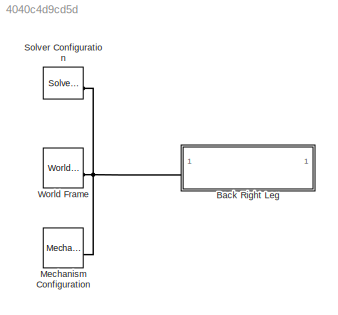
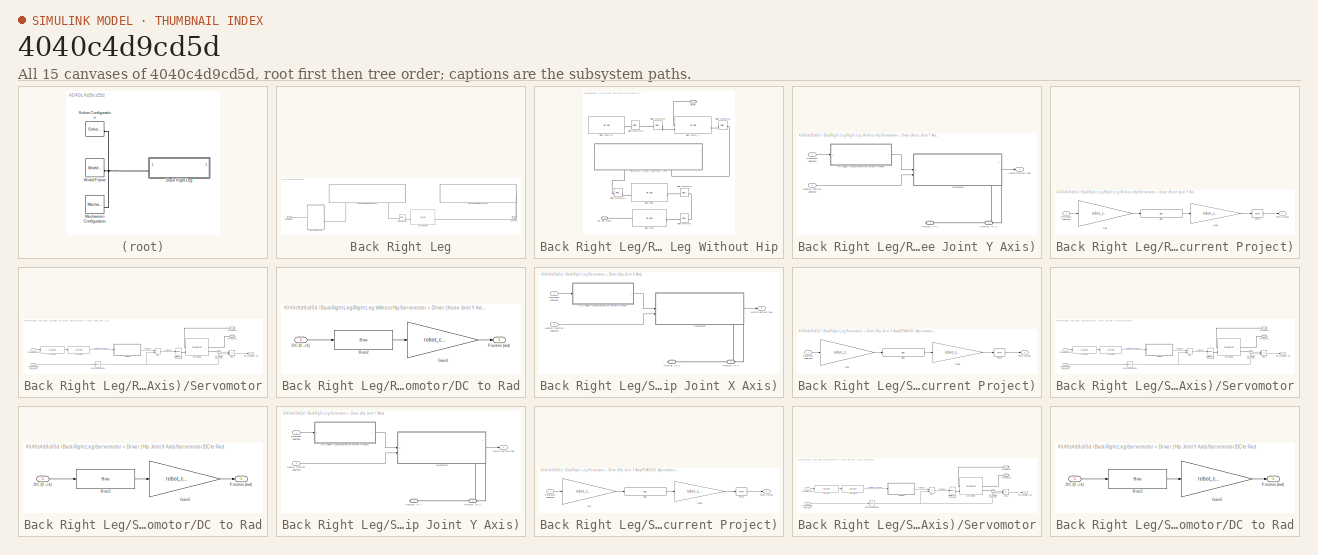
[diagram: thumbnail index - all 15 canvases of the model, root first then tree order]
MODEL slx_4040c4d9cd5d
KIND model
CONFIG AbsTol = 1e-3
CONFIG EnableMultiTasking = on
CONFIG FixedStep = auto
CONFIG MaxStep = auto
CONFIG MinStep = auto
CONFIG RelTol = 1e-3
CONFIG SampleTimeConstraint = Unconstrained
CONFIG SolverName = VariableStepAuto
CONFIG StartTime = 0.0
CONFIG StopTime = 10.0
BLOCK [SubSystem] Back Right Leg
BLOCK [Reference] Back Right Leg/Back Right Hip  REF=sm_lib/Body Elements/File Solid
  SourceBlock = sm_lib/Body Elements/File Solid
  SourceType = File Solid
BLOCK [PMIOPort] Back Right Leg/Body joint
  Port = 2
  Side = Right
BLOCK [SubSystem] Back Right Leg/Right Leg Without Hip
BLOCK [PMIOPort] Back Right Leg/Right Leg Without Hip/Hip_joint
  Port = 2
  Side = Right
BLOCK [Reference] Back Right Leg/Right Leg Without Hip/Right Femur A  REF=sm_lib/Body Elements/File Solid
  SourceBlock = sm_lib/Body Elements/File Solid
  SourceType = File Solid
BLOCK [Reference] Back Right Leg/Right Leg Without Hip/Right Femur B  REF=sm_lib/Body Elements/File Solid
  SourceBlock = sm_lib/Body Elements/File Solid
  SourceType = File Solid
BLOCK [Reference] Back Right Leg/Right Leg Without Hip/Right Foot  REF=sm_lib/Body Elements/File Solid
  SourceBlock = sm_lib/Body Elements/File Solid
  SourceType = File Solid
BLOCK [Reference] Back Right Leg/Right Leg Without Hip/Right Tibia  REF=sm_lib/Body Elements/File Solid
  SourceBlock = sm_lib/Body Elements/File Solid
  SourceType = File Solid
BLOCK [Reference] Back Right Leg/Right Leg Without Hip/Rigid Transform  REF=sm_lib/Frames and
Transforms/Rigid
Transform
  SourceBlock = sm_lib/Frames and\nTransforms/Rigid\nTransform
  SourceType = Rigid\nTransform
BLOCK [Reference] Back Right Leg/Right Leg Without Hip/Rigid Transform1  REF=sm_lib/Frames and
Transforms/Rigid
Transform
  SourceBlock = sm_lib/Frames and\nTransforms/Rigid\nTransform
  SourceType = Rigid\nTransform
BLOCK [Reference] Back Right Leg/Right Leg Without Hip/Rigid Transform2  REF=sm_lib/Frames and
Transforms/Rigid
Transform
  SourceBlock = sm_lib/Frames and\nTransforms/Rigid\nTransform
  SourceType = Rigid\nTransform
BLOCK [Reference] Back Right Leg/Right Leg Without Hip/Rigid Transform4  REF=sm_lib/Frames and
Transforms/Rigid
Transform
  SourceBlock = sm_lib/Frames and\nTransforms/Rigid\nTransform
  SourceType = Rigid\nTransform
BLOCK [Reference] Back Right Leg/Right Leg Without Hip/Rigid Transform5  REF=sm_lib/Frames and
Transforms/Rigid
Transform
  SourceBlock = sm_lib/Frames and\nTransforms/Rigid\nTransform
  SourceType = Rigid\nTransform
BLOCK [Reference] Back Right Leg/Right Leg Without Hip/Rigid Transform6  REF=sm_lib/Frames and
Transforms/Rigid
Transform
  NameLocation = right
  SourceBlock = sm_lib/Frames and\nTransforms/Rigid\nTransform
  SourceType = Rigid\nTransform
BLOCK [SubSystem] Back Right Leg/Right Leg Without Hip/Servomotor + Driver (Knee Joint Y Axis)
  PortSchema = {"entries":[{"content":{"sides":[{"content":{"connectorIds":["In1","In2"]},"type":"ConnectorPlacement.EquallySpacedRectSide","uuid":"34aed934-2639-4a00-aaee-cf3027466446"},{"content":{"connectorIds":["Out1"],"side":"RIGHT"},"type":"ConnectorPlacement.EquallySpacedRectSide","uuid":"6801890d-3466-4e37-90e8-6d1471e5b2c4"},{"content":{"side":"TOP"},"type":"ConnectorPlacement.EquallySpacedRectSide","uu...<+389ch>  <repeated x3 — deduplicated; at blocks: Servomotor + Driver (Knee Joint Y Axis), Servomotor + Driver (Hip Joint X Axis), Servomotor + Driver (Hip Joint Y Axis)>
BLOCK [Inport] Back Right Leg/Right Leg Without Hip/Servomotor + Driver (Knee Joint Y Axis)/Neutral Position (degrees)
  Port = 2
BLOCK [SubSystem] Back Right Leg/Right Leg Without Hip/Servomotor + Driver (Knee Joint Y Axis)/PCA9685 (Aproximation for current Project)
BLOCK [Bias] Back Right Leg/Right Leg Without Hip/Servomotor + Driver (Knee Joint Y Axis)/PCA9685 (Aproximation for current Project)/Bias
  Bias = robot_conversions.steps_offset
  SaturateOnIntegerOverflow = off
BLOCK [Gain] Back Right Leg/Right Leg Without Hip/Servomotor + Driver (Knee Joint Y Axis)/PCA9685 (Aproximation for current Project)/Gain
  Gain = robot_conversions.steps_to_degrees
BLOCK [Gain] Back Right Leg/Right Leg Without Hip/Servomotor + Driver (Knee Joint Y Axis)/PCA9685 (Aproximation for current Project)/Gain1
  Gain = robot_conversions.degress_to_DC
BLOCK [Reference] Back Right Leg/Right Leg Without Hip/Servomotor + Driver (Knee Joint Y Axis)/PCA9685 (Aproximation for current Project)/PWM  REF=simulink/Discontinuities/PWM
  DisableCoverage = on
  SourceBlock = simulink/Discontinuities/PWM
  SourceType = PWM
BLOCK [Outport] Back Right Leg/Right Leg Without Hip/Servomotor + Driver (Knee Joint Y Axis)/PCA9685 (Aproximation for current Project)/PWM Output
  NameLocation = right
BLOCK [Inport] Back Right Leg/Right Leg Without Hip/Servomotor + Driver (Knee Joint Y Axis)/PCA9685 (Aproximation for current Project)/Reference (degrees)
  NameLocation = left
BLOCK [PMIOPort] Back Right Leg/Right Leg Without Hip/Servomotor + Driver (Knee Joint Y Axis)/Physical Art 1
  Side = Right
BLOCK [PMIOPort] Back Right Leg/Right Leg Without Hip/Servomotor + Driver (Knee Joint Y Axis)/Physical Art 2
  Port = 2
  Side = Right
BLOCK [Inport] Back Right Leg/Right Leg Without Hip/Servomotor + Driver (Knee Joint Y Axis)/Reference (degrees)
BLOCK [Outport] Back Right Leg/Right Leg Without Hip/Servomotor + Driver (Knee Joint Y Axis)/Servo Position (rad)
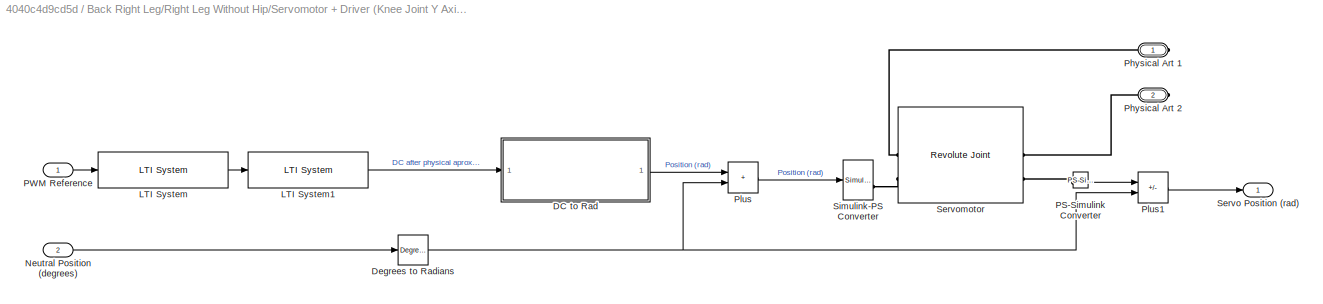
BLOCK [SubSystem] Back Right Leg/Right Leg Without Hip/Servomotor + Driver (Knee Joint Y Axis)/Servomotor
  PortSchema = {"entries":[{"content":{"sides":[{"content":{"connectorIds":["In1","In2"]},"type":"ConnectorPlacement.EquallySpacedRectSide","uuid":"eeff66d3-7cb0-4fe9-90b5-92935711e170"},{"content":{"connectorIds":["Out1"],"side":"RIGHT"},"type":"ConnectorPlacement.EquallySpacedRectSide","uuid":"4c1729b3-3224-4ed4-9eed-359312bd5e7e"},{"content":{"side":"TOP"},"type":"ConnectorPlacement.EquallySpacedRectSide","uu...<+389ch>  <repeated x3 — deduplicated; at blocks: Servomotor>
BLOCK [SubSystem] Back Right Leg/Right Leg Without Hip/Servomotor + Driver (Knee Joint Y Axis)/Servomotor/DC to Rad
BLOCK [Bias] Back Right Leg/Right Leg Without Hip/Servomotor + Driver (Knee Joint Y Axis)/Servomotor/DC to Rad/Bias2
  Bias = robot_conversions.DC_offset
  SaturateOnIntegerOverflow = off
BLOCK [Inport] Back Right Leg/Right Leg Without Hip/Servomotor + Driver (Knee Joint Y Axis)/Servomotor/DC to Rad/DC (0 -->1)
BLOCK [Gain] Back Right Leg/Right Leg Without Hip/Servomotor + Driver (Knee Joint Y Axis)/Servomotor/DC to Rad/Gain2
  Gain = robot_conversions.DC_to_rad
BLOCK [Outport] Back Right Leg/Right Leg Without Hip/Servomotor + Driver (Knee Joint Y Axis)/Servomotor/DC to Rad/Position (rad)
BLOCK [Reference] Back Right Leg/Right Leg Without Hip/Servomotor + Driver (Knee Joint Y Axis)/Servomotor/Degrees to Radians  REF=simulink_extras/Transformations/Degrees to
Radians
  SourceBlock = simulink_extras/Transformations/Degrees to\nRadians
  SourceType = DegreesToRadians
BLOCK [Reference] Back Right Leg/Right Leg Without Hip/Servomotor + Driver (Knee Joint Y Axis)/Servomotor/LTI System  REF=cstblocks/LTI System
  SourceBlock = cstblocks/LTI System
  SourceType = LTI Block
BLOCK [Reference] Back Right Leg/Right Leg Without Hip/Servomotor + Driver (Knee Joint Y Axis)/Servomotor/LTI System1  REF=cstblocks/LTI System
  SourceBlock = cstblocks/LTI System
  SourceType = LTI Block
BLOCK [Inport] Back Right Leg/Right Leg Without Hip/Servomotor + Driver (Knee Joint Y Axis)/Servomotor/Neutral Position (degrees)
  NameLocation = left
  Port = 2
BLOCK [Reference] Back Right Leg/Right Leg Without Hip/Servomotor + Driver (Knee Joint Y Axis)/Servomotor/PS-Simulink Converter  REF=nesl_utility/PS-Simulink
Converter
  SourceBlock = nesl_utility/PS-Simulink\nConverter
  SourceType = PS-Simulink\nConverter
BLOCK [Inport] Back Right Leg/Right Leg Without Hip/Servomotor + Driver (Knee Joint Y Axis)/Servomotor/PWM Reference
  NameLocation = left
BLOCK [PMIOPort] Back Right Leg/Right Leg Without Hip/Servomotor + Driver (Knee Joint Y Axis)/Servomotor/Physical Art 1
  Side = Right
BLOCK [PMIOPort] Back Right Leg/Right Leg Without Hip/Servomotor + Driver (Knee Joint Y Axis)/Servomotor/Physical Art 2
  Port = 2
  Side = Right
BLOCK [Sum] Back Right Leg/Right Leg Without Hip/Servomotor + Driver (Knee Joint Y Axis)/Servomotor/Plus
  IconShape = rectangular
BLOCK [Sum] Back Right Leg/Right Leg Without Hip/Servomotor + Driver (Knee Joint Y Axis)/Servomotor/Plus1
  IconShape = rectangular
  Inputs = +-
BLOCK [Outport] Back Right Leg/Right Leg Without Hip/Servomotor + Driver (Knee Joint Y Axis)/Servomotor/Servo Position (rad)
  NameLocation = right
BLOCK [Reference] Back Right Leg/Right Leg Without Hip/Servomotor + Driver (Knee Joint Y Axis)/Servomotor/Servomotor  REF=sm_lib/Joints/Revolute Joint
  SourceBlock = sm_lib/Joints/Revolute Joint
  SourceType = Revolute Joint
BLOCK [Reference] Back Right Leg/Right Leg Without Hip/Servomotor + Driver (Knee Joint Y Axis)/Servomotor/Simulink-PS Converter  REF=nesl_utility/Simulink-PS
Converter
  SourceBlock = nesl_utility/Simulink-PS\nConverter
  SourceType = Simulink-PS\nConverter
BLOCK [PMIOPort] Back Right Leg/Right Leg Without Hip/Sist Ref Global
  Side = Left
BLOCK [Reference] Back Right Leg/Rigid Transform  REF=sm_lib/Frames and
Transforms/Rigid
Transform
  SourceBlock = sm_lib/Frames and\nTransforms/Rigid\nTransform
  SourceType = Rigid\nTransform
BLOCK [SubSystem] Back Right Leg/Servomotor + Driver (Hip Joint X Axis)
BLOCK [Inport] Back Right Leg/Servomotor + Driver (Hip Joint X Axis)/Neutral Position (degrees)
  Port = 2
BLOCK [SubSystem] Back Right Leg/Servomotor + Driver (Hip Joint X Axis)/PCA9685 (Aproximation for current Project)
BLOCK [Bias] Back Right Leg/Servomotor + Driver (Hip Joint X Axis)/PCA9685 (Aproximation for current Project)/Bias
  Bias = robot_conversions.steps_offset
  SaturateOnIntegerOverflow = off
BLOCK [Gain] Back Right Leg/Servomotor + Driver (Hip Joint X Axis)/PCA9685 (Aproximation for current Project)/Gain
  Gain = robot_conversions.steps_to_degrees
BLOCK [Gain] Back Right Leg/Servomotor + Driver (Hip Joint X Axis)/PCA9685 (Aproximation for current Project)/Gain1
  Gain = robot_conversions.degress_to_DC
BLOCK [Reference] Back Right Leg/Servomotor + Driver (Hip Joint X Axis)/PCA9685 (Aproximation for current Project)/PWM  REF=simulink/Discontinuities/PWM
  DisableCoverage = on
  SourceBlock = simulink/Discontinuities/PWM
  SourceType = PWM
BLOCK [Outport] Back Right Leg/Servomotor + Driver (Hip Joint X Axis)/PCA9685 (Aproximation for current Project)/PWM Output
  NameLocation = right
BLOCK [Inport] Back Right Leg/Servomotor + Driver (Hip Joint X Axis)/PCA9685 (Aproximation for current Project)/Reference (degrees)
  NameLocation = left
BLOCK [PMIOPort] Back Right Leg/Servomotor + Driver (Hip Joint X Axis)/Physical Art 1
  Side = Right
BLOCK [PMIOPort] Back Right Leg/Servomotor + Driver (Hip Joint X Axis)/Physical Art 2
  Port = 2
  Side = Right
BLOCK [Inport] Back Right Leg/Servomotor + Driver (Hip Joint X Axis)/Reference (degrees)
BLOCK [Outport] Back Right Leg/Servomotor + Driver (Hip Joint X Axis)/Servo Position (rad)
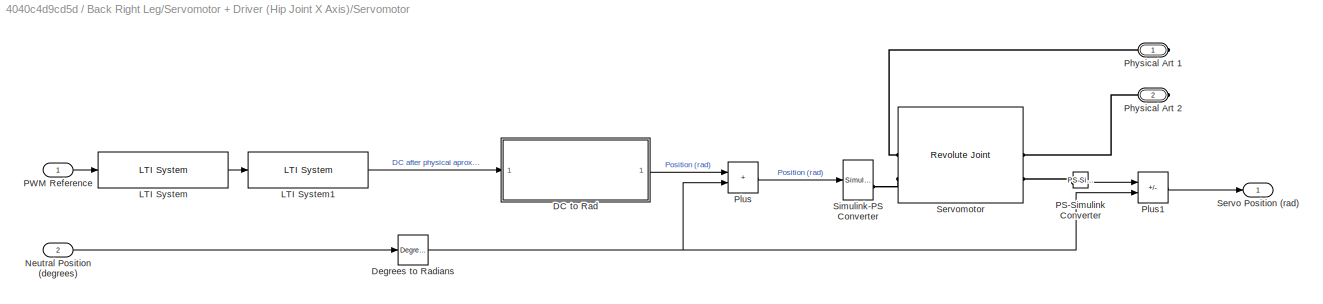
BLOCK [SubSystem] Back Right Leg/Servomotor + Driver (Hip Joint X Axis)/Servomotor
BLOCK [SubSystem] Back Right Leg/Servomotor + Driver (Hip Joint X Axis)/Servomotor/DC to Rad
BLOCK [Bias] Back Right Leg/Servomotor + Driver (Hip Joint X Axis)/Servomotor/DC to Rad/Bias2
  Bias = robot_conversions.DC_offset
  SaturateOnIntegerOverflow = off
BLOCK [Inport] Back Right Leg/Servomotor + Driver (Hip Joint X Axis)/Servomotor/DC to Rad/DC (0 -->1)
BLOCK [Gain] Back Right Leg/Servomotor + Driver (Hip Joint X Axis)/Servomotor/DC to Rad/Gain2
  Gain = robot_conversions.DC_to_rad
BLOCK [Outport] Back Right Leg/Servomotor + Driver (Hip Joint X Axis)/Servomotor/DC to Rad/Position (rad)
BLOCK [Reference] Back Right Leg/Servomotor + Driver (Hip Joint X Axis)/Servomotor/Degrees to Radians  REF=simulink_extras/Transformations/Degrees to
Radians
  SourceBlock = simulink_extras/Transformations/Degrees to\nRadians
  SourceType = DegreesToRadians
BLOCK [Reference] Back Right Leg/Servomotor + Driver (Hip Joint X Axis)/Servomotor/LTI System  REF=cstblocks/LTI System
  SourceBlock = cstblocks/LTI System
  SourceType = LTI Block
BLOCK [Reference] Back Right Leg/Servomotor + Driver (Hip Joint X Axis)/Servomotor/LTI System1  REF=cstblocks/LTI System
  SourceBlock = cstblocks/LTI System
  SourceType = LTI Block
BLOCK [Inport] Back Right Leg/Servomotor + Driver (Hip Joint X Axis)/Servomotor/Neutral Position (degrees)
  NameLocation = left
  Port = 2
BLOCK [Reference] Back Right Leg/Servomotor + Driver (Hip Joint X Axis)/Servomotor/PS-Simulink Converter  REF=nesl_utility/PS-Simulink
Converter
  SourceBlock = nesl_utility/PS-Simulink\nConverter
  SourceType = PS-Simulink\nConverter
BLOCK [Inport] Back Right Leg/Servomotor + Driver (Hip Joint X Axis)/Servomotor/PWM Reference
  NameLocation = left
BLOCK [PMIOPort] Back Right Leg/Servomotor + Driver (Hip Joint X Axis)/Servomotor/Physical Art 1
  Side = Right
BLOCK [PMIOPort] Back Right Leg/Servomotor + Driver (Hip Joint X Axis)/Servomotor/Physical Art 2
  Port = 2
  Side = Right
BLOCK [Sum] Back Right Leg/Servomotor + Driver (Hip Joint X Axis)/Servomotor/Plus
  IconShape = rectangular
BLOCK [Sum] Back Right Leg/Servomotor + Driver (Hip Joint X Axis)/Servomotor/Plus1
  IconShape = rectangular
  Inputs = +-
BLOCK [Outport] Back Right Leg/Servomotor + Driver (Hip Joint X Axis)/Servomotor/Servo Position (rad)
  NameLocation = right
BLOCK [Reference] Back Right Leg/Servomotor + Driver (Hip Joint X Axis)/Servomotor/Servomotor  REF=sm_lib/Joints/Revolute Joint
  SourceBlock = sm_lib/Joints/Revolute Joint
  SourceType = Revolute Joint
BLOCK [Reference] Back Right Leg/Servomotor + Driver (Hip Joint X Axis)/Servomotor/Simulink-PS Converter  REF=nesl_utility/Simulink-PS
Converter
  SourceBlock = nesl_utility/Simulink-PS\nConverter
  SourceType = Simulink-PS\nConverter
BLOCK [SubSystem] Back Right Leg/Servomotor + Driver (Hip Joint Y Axis)
BLOCK [Inport] Back Right Leg/Servomotor + Driver (Hip Joint Y Axis)/Neutral Position (degrees)
  Port = 2
BLOCK [SubSystem] Back Right Leg/Servomotor + Driver (Hip Joint Y Axis)/PCA9685 (Aproximation for current Project)
BLOCK [Bias] Back Right Leg/Servomotor + Driver (Hip Joint Y Axis)/PCA9685 (Aproximation for current Project)/Bias
  Bias = robot_conversions.steps_offset
  SaturateOnIntegerOverflow = off
BLOCK [Gain] Back Right Leg/Servomotor + Driver (Hip Joint Y Axis)/PCA9685 (Aproximation for current Project)/Gain
  Gain = robot_conversions.steps_to_degrees
BLOCK [Gain] Back Right Leg/Servomotor + Driver (Hip Joint Y Axis)/PCA9685 (Aproximation for current Project)/Gain1
  Gain = robot_conversions.degress_to_DC
BLOCK [Reference] Back Right Leg/Servomotor + Driver (Hip Joint Y Axis)/PCA9685 (Aproximation for current Project)/PWM  REF=simulink/Discontinuities/PWM
  DisableCoverage = on
  SourceBlock = simulink/Discontinuities/PWM
  SourceType = PWM
BLOCK [Outport] Back Right Leg/Servomotor + Driver (Hip Joint Y Axis)/PCA9685 (Aproximation for current Project)/PWM Output
  NameLocation = right
BLOCK [Inport] Back Right Leg/Servomotor + Driver (Hip Joint Y Axis)/PCA9685 (Aproximation for current Project)/Reference (degrees)
  NameLocation = left
BLOCK [PMIOPort] Back Right Leg/Servomotor + Driver (Hip Joint Y Axis)/Physical Art 1
  Side = Right
BLOCK [PMIOPort] Back Right Leg/Servomotor + Driver (Hip Joint Y Axis)/Physical Art 2
  Port = 2
  Side = Right
BLOCK [Inport] Back Right Leg/Servomotor + Driver (Hip Joint Y Axis)/Reference (degrees)
BLOCK [Outport] Back Right Leg/Servomotor + Driver (Hip Joint Y Axis)/Servo Position (rad)
BLOCK [SubSystem] Back Right Leg/Servomotor + Driver (Hip Joint Y Axis)/Servomotor
BLOCK [SubSystem] Back Right Leg/Servomotor + Driver (Hip Joint Y Axis)/Servomotor/DC to Rad
BLOCK [Bias] Back Right Leg/Servomotor + Driver (Hip Joint Y Axis)/Servomotor/DC to Rad/Bias2
  Bias = robot_conversions.DC_offset
  SaturateOnIntegerOverflow = off
BLOCK [Inport] Back Right Leg/Servomotor + Driver (Hip Joint Y Axis)/Servomotor/DC to Rad/DC (0 -->1)
BLOCK [Gain] Back Right Leg/Servomotor + Driver (Hip Joint Y Axis)/Servomotor/DC to Rad/Gain2
  Gain = robot_conversions.DC_to_rad
BLOCK [Outport] Back Right Leg/Servomotor + Driver (Hip Joint Y Axis)/Servomotor/DC to Rad/Position (rad)
BLOCK [Reference] Back Right Leg/Servomotor + Driver (Hip Joint Y Axis)/Servomotor/Degrees to Radians  REF=simulink_extras/Transformations/Degrees to
Radians
  SourceBlock = simulink_extras/Transformations/Degrees to\nRadians
  SourceType = DegreesToRadians
BLOCK [Reference] Back Right Leg/Servomotor + Driver (Hip Joint Y Axis)/Servomotor/LTI System  REF=cstblocks/LTI System
  SourceBlock = cstblocks/LTI System
  SourceType = LTI Block
BLOCK [Reference] Back Right Leg/Servomotor + Driver (Hip Joint Y Axis)/Servomotor/LTI System1  REF=cstblocks/LTI System
  SourceBlock = cstblocks/LTI System
  SourceType = LTI Block
BLOCK [Inport] Back Right Leg/Servomotor + Driver (Hip Joint Y Axis)/Servomotor/Neutral Position (degrees)
  NameLocation = left
  Port = 2
BLOCK [Reference] Back Right Leg/Servomotor + Driver (Hip Joint Y Axis)/Servomotor/PS-Simulink Converter  REF=nesl_utility/PS-Simulink
Converter
  SourceBlock = nesl_utility/PS-Simulink\nConverter
  SourceType = PS-Simulink\nConverter
BLOCK [Inport] Back Right Leg/Servomotor + Driver (Hip Joint Y Axis)/Servomotor/PWM Reference
  NameLocation = left
BLOCK [PMIOPort] Back Right Leg/Servomotor + Driver (Hip Joint Y Axis)/Servomotor/Physical Art 1
  Side = Right
BLOCK [PMIOPort] Back Right Leg/Servomotor + Driver (Hip Joint Y Axis)/Servomotor/Physical Art 2
  Port = 2
  Side = Right
BLOCK [Sum] Back Right Leg/Servomotor + Driver (Hip Joint Y Axis)/Servomotor/Plus
  IconShape = rectangular
BLOCK [Sum] Back Right Leg/Servomotor + Driver (Hip Joint Y Axis)/Servomotor/Plus1
  IconShape = rectangular
  Inputs = +-
BLOCK [Outport] Back Right Leg/Servomotor + Driver (Hip Joint Y Axis)/Servomotor/Servo Position (rad)
  NameLocation = right
BLOCK [Reference] Back Right Leg/Servomotor + Driver (Hip Joint Y Axis)/Servomotor/Servomotor  REF=sm_lib/Joints/Revolute Joint
  SourceBlock = sm_lib/Joints/Revolute Joint
  SourceType = Revolute Joint
BLOCK [Reference] Back Right Leg/Servomotor + Driver (Hip Joint Y Axis)/Servomotor/Simulink-PS Converter  REF=nesl_utility/Simulink-PS
Converter
  SourceBlock = nesl_utility/Simulink-PS\nConverter
  SourceType = Simulink-PS\nConverter
BLOCK [PMIOPort] Back Right Leg/Sist Ref Global
  Side = Left
BLOCK [Reference] Mechanism Configuration  REF=sm_lib/Utilities/Mechanism
Configuration
  SourceBlock = sm_lib/Utilities/Mechanism\nConfiguration
  SourceType = Mechanism\nConfiguration
BLOCK [Reference] Solver Configuration  REF=nesl_utility/Solver
Configuration
  SourceBlock = nesl_utility/Solver\nConfiguration
  SourceType = Solver\nConfiguration
BLOCK [Reference] World Frame  REF=sm_lib/Frames and
Transforms/World Frame
  SourceBlock = sm_lib/Frames and\nTransforms/World Frame
  SourceType = World Frame
LINE Back Right Leg/Right Leg Without Hip/Servomotor + Driver (Knee Joint Y Axis)/Neutral Position (degrees):1 -> Back Right Leg/Right Leg Without Hip/Servomotor + Driver (Knee Joint Y Axis)/Servomotor:2
LINE Back Right Leg/Right Leg Without Hip/Servomotor + Driver (Knee Joint Y Axis)/PCA9685 (Aproximation for current Project)/Bias:1 -> Back Right Leg/Right Leg Without Hip/Servomotor + Driver (Knee Joint Y Axis)/PCA9685 (Aproximation for current Project)/Gain1:1
LINE Back Right Leg/Right Leg Without Hip/Servomotor + Driver (Knee Joint Y Axis)/PCA9685 (Aproximation for current Project)/Gain1:1 -> Back Right Leg/Right Leg Without Hip/Servomotor + Driver (Knee Joint Y Axis)/PCA9685 (Aproximation for current Project)/PWM:1
LINE Back Right Leg/Right Leg Without Hip/Servomotor + Driver (Knee Joint Y Axis)/PCA9685 (Aproximation for current Project)/Gain:1 -> Back Right Leg/Right Leg Without Hip/Servomotor + Driver (Knee Joint Y Axis)/PCA9685 (Aproximation for current Project)/Bias:1
LINE Back Right Leg/Right Leg Without Hip/Servomotor + Driver (Knee Joint Y Axis)/PCA9685 (Aproximation for current Project)/PWM:1 -> Back Right Leg/Right Leg Without Hip/Servomotor + Driver (Knee Joint Y Axis)/PCA9685 (Aproximation for current Project)/PWM Output:1
LINE Back Right Leg/Right Leg Without Hip/Servomotor + Driver (Knee Joint Y Axis)/PCA9685 (Aproximation for current Project)/Reference (degrees):1 -> Back Right Leg/Right Leg Without Hip/Servomotor + Driver (Knee Joint Y Axis)/PCA9685 (Aproximation for current Project)/Gain:1
LINE Back Right Leg/Right Leg Without Hip/Servomotor + Driver (Knee Joint Y Axis)/PCA9685 (Aproximation for current Project):1 -> Back Right Leg/Right Leg Without Hip/Servomotor + Driver (Knee Joint Y Axis)/Servomotor:1
LINE Back Right Leg/Right Leg Without Hip/Servomotor + Driver (Knee Joint Y Axis)/Reference (degrees):1 -> Back Right Leg/Right Leg Without Hip/Servomotor + Driver (Knee Joint Y Axis)/PCA9685 (Aproximation for current Project):1
LINE Back Right Leg/Right Leg Without Hip/Servomotor + Driver (Knee Joint Y Axis)/Servomotor/DC to Rad/Bias2:1 -> Back Right Leg/Right Leg Without Hip/Servomotor + Driver (Knee Joint Y Axis)/Servomotor/DC to Rad/Gain2:1
LINE Back Right Leg/Right Leg Without Hip/Servomotor + Driver (Knee Joint Y Axis)/Servomotor/DC to Rad/DC (0 -->1):1 -> Back Right Leg/Right Leg Without Hip/Servomotor + Driver (Knee Joint Y Axis)/Servomotor/DC to Rad/Bias2:1
LINE Back Right Leg/Right Leg Without Hip/Servomotor + Driver (Knee Joint Y Axis)/Servomotor/DC to Rad/Gain2:1 -> Back Right Leg/Right Leg Without Hip/Servomotor + Driver (Knee Joint Y Axis)/Servomotor/DC to Rad/Position (rad):1
LINE Back Right Leg/Right Leg Without Hip/Servomotor + Driver (Knee Joint Y Axis)/Servomotor/DC to Rad:1 -> Back Right Leg/Right Leg Without Hip/Servomotor + Driver (Knee Joint Y Axis)/Servomotor/Plus:1
NET Back Right Leg/Right Leg Without Hip/Servomotor + Driver (Knee Joint Y Axis)/Servomotor/Degrees to Radians:1 -> Back Right Leg/Right Leg Without Hip/Servomotor + Driver (Knee Joint Y Axis)/Servomotor/Plus1:2, Back Right Leg/Right Leg Without Hip/Servomotor + Driver (Knee Joint Y Axis)/Servomotor/Plus:2
LINE Back Right Leg/Right Leg Without Hip/Servomotor + Driver (Knee Joint Y Axis)/Servomotor/LTI System1:1 -> Back Right Leg/Right Leg Without Hip/Servomotor + Driver (Knee Joint Y Axis)/Servomotor/DC to Rad:1
LINE Back Right Leg/Right Leg Without Hip/Servomotor + Driver (Knee Joint Y Axis)/Servomotor/LTI System:1 -> Back Right Leg/Right Leg Without Hip/Servomotor + Driver (Knee Joint Y Axis)/Servomotor/LTI System1:1
LINE Back Right Leg/Right Leg Without Hip/Servomotor + Driver (Knee Joint Y Axis)/Servomotor/Neutral Position (degrees):1 -> Back Right Leg/Right Leg Without Hip/Servomotor + Driver (Knee Joint Y Axis)/Servomotor/Degrees to Radians:1
LINE Back Right Leg/Right Leg Without Hip/Servomotor + Driver (Knee Joint Y Axis)/Servomotor/PS-Simulink Converter:1 -> Back Right Leg/Right Leg Without Hip/Servomotor + Driver (Knee Joint Y Axis)/Servomotor/Plus1:1
LINE Back Right Leg/Right Leg Without Hip/Servomotor + Driver (Knee Joint Y Axis)/Servomotor/PWM Reference:1 -> Back Right Leg/Right Leg Without Hip/Servomotor + Driver (Knee Joint Y Axis)/Servomotor/LTI System:1
LINE Back Right Leg/Right Leg Without Hip/Servomotor + Driver (Knee Joint Y Axis)/Servomotor/Plus1:1 -> Back Right Leg/Right Leg Without Hip/Servomotor + Driver (Knee Joint Y Axis)/Servomotor/Servo Position (rad):1
LINE Back Right Leg/Right Leg Without Hip/Servomotor + Driver (Knee Joint Y Axis)/Servomotor/Plus:1 -> Back Right Leg/Right Leg Without Hip/Servomotor + Driver (Knee Joint Y Axis)/Servomotor/Simulink-PS Converter:1
LINE Back Right Leg/Right Leg Without Hip/Servomotor + Driver (Knee Joint Y Axis)/Servomotor:1 -> Back Right Leg/Right Leg Without Hip/Servomotor + Driver (Knee Joint Y Axis)/Servo Position (rad):1
LINE Back Right Leg/Servomotor + Driver (Hip Joint X Axis)/Neutral Position (degrees):1 -> Back Right Leg/Servomotor + Driver (Hip Joint X Axis)/Servomotor:2
LINE Back Right Leg/Servomotor + Driver (Hip Joint X Axis)/PCA9685 (Aproximation for current Project)/Bias:1 -> Back Right Leg/Servomotor + Driver (Hip Joint X Axis)/PCA9685 (Aproximation for current Project)/Gain1:1
LINE Back Right Leg/Servomotor + Driver (Hip Joint X Axis)/PCA9685 (Aproximation for current Project)/Gain1:1 -> Back Right Leg/Servomotor + Driver (Hip Joint X Axis)/PCA9685 (Aproximation for current Project)/PWM:1
LINE Back Right Leg/Servomotor + Driver (Hip Joint X Axis)/PCA9685 (Aproximation for current Project)/Gain:1 -> Back Right Leg/Servomotor + Driver (Hip Joint X Axis)/PCA9685 (Aproximation for current Project)/Bias:1
LINE Back Right Leg/Servomotor + Driver (Hip Joint X Axis)/PCA9685 (Aproximation for current Project)/PWM:1 -> Back Right Leg/Servomotor + Driver (Hip Joint X Axis)/PCA9685 (Aproximation for current Project)/PWM Output:1
LINE Back Right Leg/Servomotor + Driver (Hip Joint X Axis)/PCA9685 (Aproximation for current Project)/Reference (degrees):1 -> Back Right Leg/Servomotor + Driver (Hip Joint X Axis)/PCA9685 (Aproximation for current Project)/Gain:1
LINE Back Right Leg/Servomotor + Driver (Hip Joint X Axis)/PCA9685 (Aproximation for current Project):1 -> Back Right Leg/Servomotor + Driver (Hip Joint X Axis)/Servomotor:1
LINE Back Right Leg/Servomotor + Driver (Hip Joint X Axis)/Reference (degrees):1 -> Back Right Leg/Servomotor + Driver (Hip Joint X Axis)/PCA9685 (Aproximation for current Project):1
LINE Back Right Leg/Servomotor + Driver (Hip Joint X Axis)/Servomotor/DC to Rad/Bias2:1 -> Back Right Leg/Servomotor + Driver (Hip Joint X Axis)/Servomotor/DC to Rad/Gain2:1
LINE Back Right Leg/Servomotor + Driver (Hip Joint X Axis)/Servomotor/DC to Rad/DC (0 -->1):1 -> Back Right Leg/Servomotor + Driver (Hip Joint X Axis)/Servomotor/DC to Rad/Bias2:1
LINE Back Right Leg/Servomotor + Driver (Hip Joint X Axis)/Servomotor/DC to Rad/Gain2:1 -> Back Right Leg/Servomotor + Driver (Hip Joint X Axis)/Servomotor/DC to Rad/Position (rad):1
LINE Back Right Leg/Servomotor + Driver (Hip Joint X Axis)/Servomotor/DC to Rad:1 -> Back Right Leg/Servomotor + Driver (Hip Joint X Axis)/Servomotor/Plus:1
NET Back Right Leg/Servomotor + Driver (Hip Joint X Axis)/Servomotor/Degrees to Radians:1 -> Back Right Leg/Servomotor + Driver (Hip Joint X Axis)/Servomotor/Plus1:2, Back Right Leg/Servomotor + Driver (Hip Joint X Axis)/Servomotor/Plus:2
LINE Back Right Leg/Servomotor + Driver (Hip Joint X Axis)/Servomotor/LTI System1:1 -> Back Right Leg/Servomotor + Driver (Hip Joint X Axis)/Servomotor/DC to Rad:1
LINE Back Right Leg/Servomotor + Driver (Hip Joint X Axis)/Servomotor/LTI System:1 -> Back Right Leg/Servomotor + Driver (Hip Joint X Axis)/Servomotor/LTI System1:1
LINE Back Right Leg/Servomotor + Driver (Hip Joint X Axis)/Servomotor/Neutral Position (degrees):1 -> Back Right Leg/Servomotor + Driver (Hip Joint X Axis)/Servomotor/Degrees to Radians:1
LINE Back Right Leg/Servomotor + Driver (Hip Joint X Axis)/Servomotor/PS-Simulink Converter:1 -> Back Right Leg/Servomotor + Driver (Hip Joint X Axis)/Servomotor/Plus1:1
LINE Back Right Leg/Servomotor + Driver (Hip Joint X Axis)/Servomotor/PWM Reference:1 -> Back Right Leg/Servomotor + Driver (Hip Joint X Axis)/Servomotor/LTI System:1
LINE Back Right Leg/Servomotor + Driver (Hip Joint X Axis)/Servomotor/Plus1:1 -> Back Right Leg/Servomotor + Driver (Hip Joint X Axis)/Servomotor/Servo Position (rad):1
LINE Back Right Leg/Servomotor + Driver (Hip Joint X Axis)/Servomotor/Plus:1 -> Back Right Leg/Servomotor + Driver (Hip Joint X Axis)/Servomotor/Simulink-PS Converter:1
LINE Back Right Leg/Servomotor + Driver (Hip Joint X Axis)/Servomotor:1 -> Back Right Leg/Servomotor + Driver (Hip Joint X Axis)/Servo Position (rad):1
LINE Back Right Leg/Servomotor + Driver (Hip Joint Y Axis)/Neutral Position (degrees):1 -> Back Right Leg/Servomotor + Driver (Hip Joint Y Axis)/Servomotor:2
LINE Back Right Leg/Servomotor + Driver (Hip Joint Y Axis)/PCA9685 (Aproximation for current Project)/Bias:1 -> Back Right Leg/Servomotor + Driver (Hip Joint Y Axis)/PCA9685 (Aproximation for current Project)/Gain1:1
LINE Back Right Leg/Servomotor + Driver (Hip Joint Y Axis)/PCA9685 (Aproximation for current Project)/Gain1:1 -> Back Right Leg/Servomotor + Driver (Hip Joint Y Axis)/PCA9685 (Aproximation for current Project)/PWM:1
LINE Back Right Leg/Servomotor + Driver (Hip Joint Y Axis)/PCA9685 (Aproximation for current Project)/Gain:1 -> Back Right Leg/Servomotor + Driver (Hip Joint Y Axis)/PCA9685 (Aproximation for current Project)/Bias:1
LINE Back Right Leg/Servomotor + Driver (Hip Joint Y Axis)/PCA9685 (Aproximation for current Project)/PWM:1 -> Back Right Leg/Servomotor + Driver (Hip Joint Y Axis)/PCA9685 (Aproximation for current Project)/PWM Output:1
LINE Back Right Leg/Servomotor + Driver (Hip Joint Y Axis)/PCA9685 (Aproximation for current Project)/Reference (degrees):1 -> Back Right Leg/Servomotor + Driver (Hip Joint Y Axis)/PCA9685 (Aproximation for current Project)/Gain:1
LINE Back Right Leg/Servomotor + Driver (Hip Joint Y Axis)/PCA9685 (Aproximation for current Project):1 -> Back Right Leg/Servomotor + Driver (Hip Joint Y Axis)/Servomotor:1
LINE Back Right Leg/Servomotor + Driver (Hip Joint Y Axis)/Reference (degrees):1 -> Back Right Leg/Servomotor + Driver (Hip Joint Y Axis)/PCA9685 (Aproximation for current Project):1
LINE Back Right Leg/Servomotor + Driver (Hip Joint Y Axis)/Servomotor/DC to Rad/Bias2:1 -> Back Right Leg/Servomotor + Driver (Hip Joint Y Axis)/Servomotor/DC to Rad/Gain2:1
LINE Back Right Leg/Servomotor + Driver (Hip Joint Y Axis)/Servomotor/DC to Rad/DC (0 -->1):1 -> Back Right Leg/Servomotor + Driver (Hip Joint Y Axis)/Servomotor/DC to Rad/Bias2:1
LINE Back Right Leg/Servomotor + Driver (Hip Joint Y Axis)/Servomotor/DC to Rad/Gain2:1 -> Back Right Leg/Servomotor + Driver (Hip Joint Y Axis)/Servomotor/DC to Rad/Position (rad):1
LINE Back Right Leg/Servomotor + Driver (Hip Joint Y Axis)/Servomotor/DC to Rad:1 -> Back Right Leg/Servomotor + Driver (Hip Joint Y Axis)/Servomotor/Plus:1
NET Back Right Leg/Servomotor + Driver (Hip Joint Y Axis)/Servomotor/Degrees to Radians:1 -> Back Right Leg/Servomotor + Driver (Hip Joint Y Axis)/Servomotor/Plus1:2, Back Right Leg/Servomotor + Driver (Hip Joint Y Axis)/Servomotor/Plus:2
LINE Back Right Leg/Servomotor + Driver (Hip Joint Y Axis)/Servomotor/LTI System1:1 -> Back Right Leg/Servomotor + Driver (Hip Joint Y Axis)/Servomotor/DC to Rad:1
LINE Back Right Leg/Servomotor + Driver (Hip Joint Y Axis)/Servomotor/LTI System:1 -> Back Right Leg/Servomotor + Driver (Hip Joint Y Axis)/Servomotor/LTI System1:1
LINE Back Right Leg/Servomotor + Driver (Hip Joint Y Axis)/Servomotor/Neutral Position (degrees):1 -> Back Right Leg/Servomotor + Driver (Hip Joint Y Axis)/Servomotor/Degrees to Radians:1
LINE Back Right Leg/Servomotor + Driver (Hip Joint Y Axis)/Servomotor/PS-Simulink Converter:1 -> Back Right Leg/Servomotor + Driver (Hip Joint Y Axis)/Servomotor/Plus1:1
LINE Back Right Leg/Servomotor + Driver (Hip Joint Y Axis)/Servomotor/PWM Reference:1 -> Back Right Leg/Servomotor + Driver (Hip Joint Y Axis)/Servomotor/LTI System:1
LINE Back Right Leg/Servomotor + Driver (Hip Joint Y Axis)/Servomotor/Plus1:1 -> Back Right Leg/Servomotor + Driver (Hip Joint Y Axis)/Servomotor/Servo Position (rad):1
LINE Back Right Leg/Servomotor + Driver (Hip Joint Y Axis)/Servomotor/Plus:1 -> Back Right Leg/Servomotor + Driver (Hip Joint Y Axis)/Servomotor/Simulink-PS Converter:1
LINE Back Right Leg/Servomotor + Driver (Hip Joint Y Axis)/Servomotor:1 -> Back Right Leg/Servomotor + Driver (Hip Joint Y Axis)/Servo Position (rad):1
PLINE Back Right Leg/Back Right Hip:LConn1 -- Back Right Leg/Rigid Transform:LConn1
PLINE Back Right Leg/Back Right Hip:RConn1 -- Back Right Leg/Servomotor + Driver (Hip Joint X Axis):RConn1
PLINE Back Right Leg/Body joint:RConn1 -- Back Right Leg/Servomotor + Driver (Hip Joint X Axis):RConn2
PLINE Back Right Leg/Right Leg Without Hip/Hip_joint:RConn1 -- Back Right Leg/Right Leg Without Hip/Right Femur A:LConn1
PLINE Back Right Leg/Right Leg Without Hip/Right Femur A:LConn2 -- Back Right Leg/Right Leg Without Hip/Rigid Transform6:LConn1
PLINE Back Right Leg/Right Leg Without Hip/Right Femur A:RConn1 -- Back Right Leg/Right Leg Without Hip/Rigid Transform2:LConn1
PLINE Back Right Leg/Right Leg Without Hip/Right Femur B:LConn1 -- Back Right Leg/Right Leg Without Hip/Rigid Transform5:LConn1
PLINE Back Right Leg/Right Leg Without Hip/Right Foot:LConn1 -- Back Right Leg/Right Leg Without Hip/Rigid Transform:LConn1
PLINE Back Right Leg/Right Leg Without Hip/Right Foot:RConn1 -- Back Right Leg/Right Leg Without Hip/Sist Ref Global:RConn1
PLINE Back Right Leg/Right Leg Without Hip/Right Tibia:LConn1 -- Back Right Leg/Right Leg Without Hip/Rigid Transform1:LConn1
PLINE Back Right Leg/Right Leg Without Hip/Right Tibia:RConn1 -- Back Right Leg/Right Leg Without Hip/Rigid Transform4:LConn1
PLINE Back Right Leg/Right Leg Without Hip/Rigid Transform1:RConn1 -- Back Right Leg/Right Leg Without Hip/Rigid Transform:RConn1
PLINE Back Right Leg/Right Leg Without Hip/Rigid Transform2:RConn1 -- Back Right Leg/Right Leg Without Hip/Servomotor + Driver (Knee Joint Y Axis):RConn2
PLINE Back Right Leg/Right Leg Without Hip/Rigid Transform4:RConn1 -- Back Right Leg/Right Leg Without Hip/Servomotor + Driver (Knee Joint Y Axis):RConn1
PLINE Back Right Leg/Right Leg Without Hip/Rigid Transform5:RConn1 -- Back Right Leg/Right Leg Without Hip/Rigid Transform6:RConn1
PLINE Back Right Leg/Right Leg Without Hip/Servomotor + Driver (Knee Joint Y Axis)/Physical Art 1:RConn1 -- Back Right Leg/Right Leg Without Hip/Servomotor + Driver (Knee Joint Y Axis)/Servomotor:RConn1
PLINE Back Right Leg/Right Leg Without Hip/Servomotor + Driver (Knee Joint Y Axis)/Physical Art 2:RConn1 -- Back Right Leg/Right Leg Without Hip/Servomotor + Driver (Knee Joint Y Axis)/Servomotor:RConn2
PLINE Back Right Leg/Right Leg Without Hip/Servomotor + Driver (Knee Joint Y Axis)/Servomotor/PS-Simulink Converter:LConn1 -- Back Right Leg/Right Leg Without Hip/Servomotor + Driver (Knee Joint Y Axis)/Servomotor/Servomotor:RConn2
PLINE Back Right Leg/Right Leg Without Hip/Servomotor + Driver (Knee Joint Y Axis)/Servomotor/Physical Art 1:RConn1 -- Back Right Leg/Right Leg Without Hip/Servomotor + Driver (Knee Joint Y Axis)/Servomotor/Servomotor:LConn1
PLINE Back Right Leg/Right Leg Without Hip/Servomotor + Driver (Knee Joint Y Axis)/Servomotor/Physical Art 2:RConn1 -- Back Right Leg/Right Leg Without Hip/Servomotor + Driver (Knee Joint Y Axis)/Servomotor/Servomotor:RConn1
PLINE Back Right Leg/Right Leg Without Hip/Servomotor + Driver (Knee Joint Y Axis)/Servomotor/Servomotor:LConn2 -- Back Right Leg/Right Leg Without Hip/Servomotor + Driver (Knee Joint Y Axis)/Servomotor/Simulink-PS Converter:RConn1
PLINE Back Right Leg/Right Leg Without Hip:LConn1 -- Back Right Leg/Sist Ref Global:RConn1
PLINE Back Right Leg/Right Leg Without Hip:RConn1 -- Back Right Leg/Servomotor + Driver (Hip Joint Y Axis):RConn1
PLINE Back Right Leg/Rigid Transform:RConn1 -- Back Right Leg/Servomotor + Driver (Hip Joint Y Axis):RConn2
PLINE Back Right Leg/Servomotor + Driver (Hip Joint X Axis)/Physical Art 1:RConn1 -- Back Right Leg/Servomotor + Driver (Hip Joint X Axis)/Servomotor:RConn1
PLINE Back Right Leg/Servomotor + Driver (Hip Joint X Axis)/Physical Art 2:RConn1 -- Back Right Leg/Servomotor + Driver (Hip Joint X Axis)/Servomotor:RConn2
PLINE Back Right Leg/Servomotor + Driver (Hip Joint X Axis)/Servomotor/PS-Simulink Converter:LConn1 -- Back Right Leg/Servomotor + Driver (Hip Joint X Axis)/Servomotor/Servomotor:RConn2
PLINE Back Right Leg/Servomotor + Driver (Hip Joint X Axis)/Servomotor/Physical Art 1:RConn1 -- Back Right Leg/Servomotor + Driver (Hip Joint X Axis)/Servomotor/Servomotor:LConn1
PLINE Back Right Leg/Servomotor + Driver (Hip Joint X Axis)/Servomotor/Physical Art 2:RConn1 -- Back Right Leg/Servomotor + Driver (Hip Joint X Axis)/Servomotor/Servomotor:RConn1
PLINE Back Right Leg/Servomotor + Driver (Hip Joint X Axis)/Servomotor/Servomotor:LConn2 -- Back Right Leg/Servomotor + Driver (Hip Joint X Axis)/Servomotor/Simulink-PS Converter:RConn1
PLINE Back Right Leg/Servomotor + Driver (Hip Joint Y Axis)/Physical Art 1:RConn1 -- Back Right Leg/Servomotor + Driver (Hip Joint Y Axis)/Servomotor:RConn1
PLINE Back Right Leg/Servomotor + Driver (Hip Joint Y Axis)/Physical Art 2:RConn1 -- Back Right Leg/Servomotor + Driver (Hip Joint Y Axis)/Servomotor:RConn2
PLINE Back Right Leg/Servomotor + Driver (Hip Joint Y Axis)/Servomotor/PS-Simulink Converter:LConn1 -- Back Right Leg/Servomotor + Driver (Hip Joint Y Axis)/Servomotor/Servomotor:RConn2
PLINE Back Right Leg/Servomotor + Driver (Hip Joint Y Axis)/Servomotor/Physical Art 1:RConn1 -- Back Right Leg/Servomotor + Driver (Hip Joint Y Axis)/Servomotor/Servomotor:LConn1
PLINE Back Right Leg/Servomotor + Driver (Hip Joint Y Axis)/Servomotor/Physical Art 2:RConn1 -- Back Right Leg/Servomotor + Driver (Hip Joint Y Axis)/Servomotor/Servomotor:RConn1
PLINE Back Right Leg/Servomotor + Driver (Hip Joint Y Axis)/Servomotor/Servomotor:LConn2 -- Back Right Leg/Servomotor + Driver (Hip Joint Y Axis)/Servomotor/Simulink-PS Converter:RConn1
PNET net1: Back Right Leg:LConn1 -- Mechanism Configuration:RConn1 -- Solver Configuration:RConn1 -- World Frame:RConn1
note: NET lines group one-source signal fan-out (src -> all destinations, sorted); 1:1 wires keep LINE; PNET lines group multi-terminal physical nets as a canonical sorted terminal list (undirected conserving connections); 2-terminal nets keep the pairwise PLINE form
